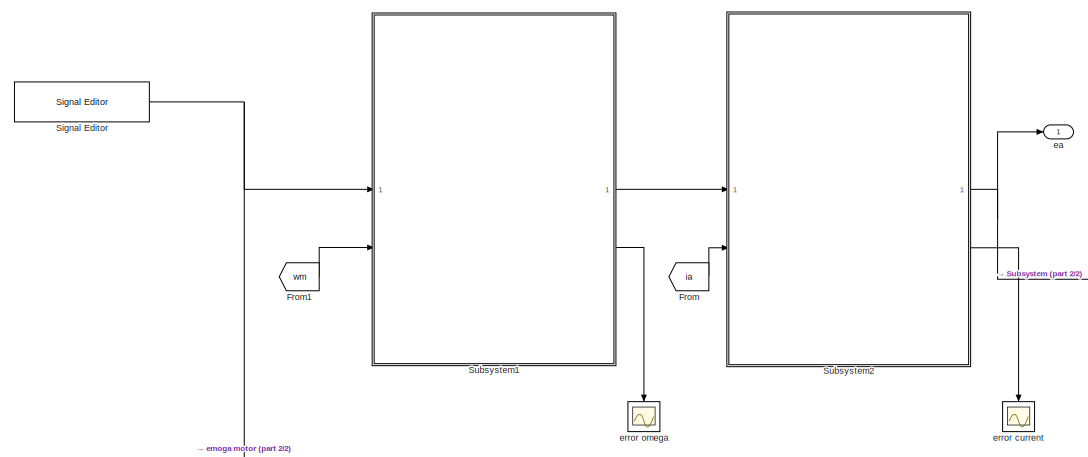
[diagram: root canvas - part 1/2, left side, full height]
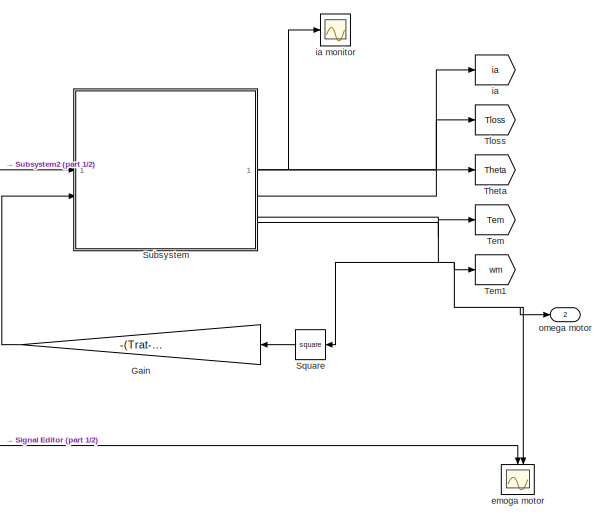
[diagram: root canvas - part 2/2, right side, full height]
MODEL slx_5d32dbe2fcf1
KIND model
CONFIG AbsTol = auto
CONFIG EnableMultiTasking = off
CONFIG FixedStep = auto
CONFIG MaxStep = auto
CONFIG MinStep = auto
CONFIG RelTol = 1e-3
CONFIG SampleTimeConstraint = Unconstrained
CONFIG SolverName = VariableStepAuto
CONFIG StartTime = 0.0
CONFIG StopTime = 100
BLOCK [From] From
  GotoTag = ia
BLOCK [From] From1
  GotoTag = wm
BLOCK [Gain] Gain
  Gain = -(Trat-CM*wm)/(wm^2)
  NameLocation = top
BLOCK [Reference] Signal Editor  REF=SignalEditorBlockLib/Signal Editor
  LibrarySourceBlock = simulink/Sources/Signal Editor
  SourceBlock = SignalEditorBlockLib/Signal Editor
  SourceType = SignalEditor
  UserDataPersistent = on
BLOCK [Math] Square
  NameLocation = top
  Operator = square
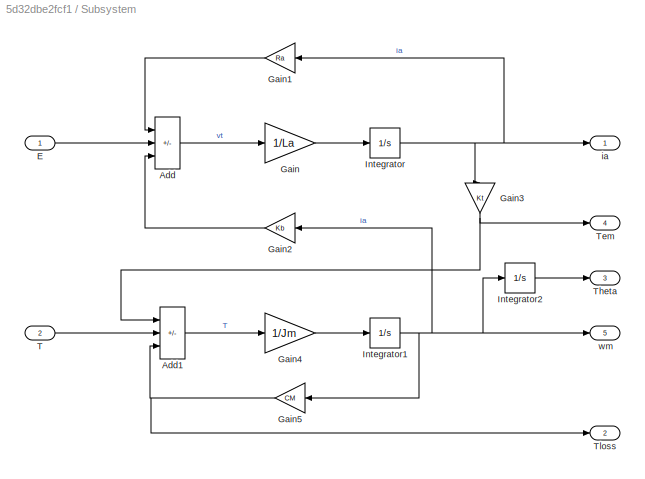
BLOCK [SubSystem] Subsystem
BLOCK [Sum] Subsystem/Add
  IconShape = rectangular
  Inputs = -+-
BLOCK [Sum] Subsystem/Add1
  IconShape = rectangular
  Inputs = ++-
BLOCK [Inport] Subsystem/E
BLOCK [Gain] Subsystem/Gain
  Gain = 1/La
BLOCK [Gain] Subsystem/Gain1
  Gain = Ra
  NameLocation = top
BLOCK [Gain] Subsystem/Gain2
  Gain = Kb
  NameLocation = top
BLOCK [Gain] Subsystem/Gain3
  Gain = Kt
  NameLocation = left
BLOCK [Gain] Subsystem/Gain4
  Gain = 1/Jm
BLOCK [Gain] Subsystem/Gain5
  Gain = CM
  NameLocation = top
BLOCK [Integrator] Subsystem/Integrator
BLOCK [Integrator] Subsystem/Integrator1
BLOCK [Integrator] Subsystem/Integrator2
BLOCK [Inport] Subsystem/T
  Port = 2
BLOCK [Outport] Subsystem/Tem
  Port = 4
BLOCK [Outport] Subsystem/Theta
  Port = 3
BLOCK [Outport] Subsystem/Tloss
  Port = 2
BLOCK [Outport] Subsystem/ia
BLOCK [Outport] Subsystem/wm
  Port = 5
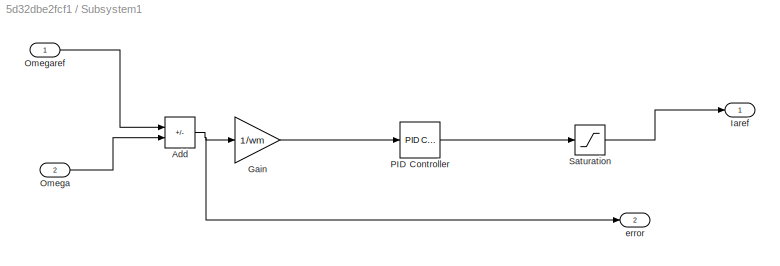
BLOCK [SubSystem] Subsystem1
BLOCK [Sum] Subsystem1/Add
  IconShape = rectangular
  Inputs = +-
BLOCK [Gain] Subsystem1/Gain
  Gain = 1/wm
BLOCK [Outport] Subsystem1/Iaref
BLOCK [Inport] Subsystem1/Omega
  Port = 2
BLOCK [Inport] Subsystem1/Omegaref
BLOCK [Reference] Subsystem1/PID Controller  REF=slpidlib/PID Controller
  LibrarySourceBlock = simulink/Continuous/PID Controller
  SourceBlock = slpidlib/PID Controller
  SourceType = PID 1dof
BLOCK [Saturate] Subsystem1/Saturation
  LowerLimit = -9
  UpperLimit = 9
BLOCK [Outport] Subsystem1/error
  Port = 2
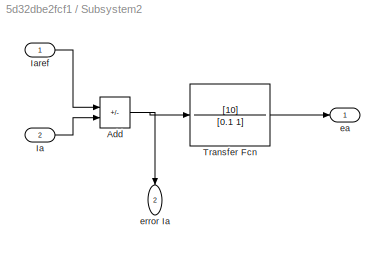
BLOCK [SubSystem] Subsystem2
BLOCK [Sum] Subsystem2/Add
  IconShape = rectangular
  Inputs = +-
BLOCK [Inport] Subsystem2/Ia
  Port = 2
BLOCK [Inport] Subsystem2/Iaref
BLOCK [TransferFcn] Subsystem2/Transfer Fcn
  Denominator = [0.1 1]
  Numerator = [10]
BLOCK [Outport] Subsystem2/ea
BLOCK [Outport] Subsystem2/error Ia
  NameLocation = left
  Port = 2
BLOCK [Goto] Tem
  GotoTag = Tem
BLOCK [Goto] Tem1
  GotoTag = wm
BLOCK [Goto] Theta
  GotoTag = Theta
BLOCK [Goto] Tloss
  GotoTag = Tloss
BLOCK [Outport] ea
BLOCK [Scope] emoga motor
  Floating = off
  NameLocation = left
  NumInputPorts = 2
  ScopeSpecificationString = Simulink.scopes.TimeScopeBlockCfg('CurrentConfiguration', extmgr.ConfigurationSet(extmgr.Configuration('Core','General UI',true),extmgr.Configuration('Core','Source UI',true),extmgr.Configuration('Sources','WiredSimulink',true),extmgr.Configuration('Visuals','Time Domain',true,'SerializedDisplays',{struct('MinYLimReal','-431.18594','MaxYLimReal','633.49302','YLabelReal','','MinYLimMag',' 0.00000',...<+1495ch>
BLOCK [Scope] error current
  Floating = off
  NameLocation = left
  NumInputPorts = 1
  ScopeSpecificationString = Simulink.scopes.TimeScopeBlockCfg('CurrentConfiguration', extmgr.ConfigurationSet(extmgr.Configuration('Core','General UI',true),extmgr.Configuration('Core','Source UI',true),extmgr.Configuration('Sources','WiredSimulink',true,'DataLoggingVariableName','ScopeData2'),extmgr.Configuration('Visuals','Time Domain',true,'SerializedDisplays',{struct('MinYLimReal','-165.95569','MaxYLimReal','618.43952','...<+1460ch>
BLOCK [Scope] error omega
  Floating = off
  NameLocation = left
  NumInputPorts = 1
  ScopeSpecificationString = Simulink.scopes.TimeScopeBlockCfg('CurrentConfiguration', extmgr.ConfigurationSet(extmgr.Configuration('Core','General UI',true),extmgr.Configuration('Core','Source UI',true),extmgr.Configuration('Sources','WiredSimulink',true,'DataLoggingVariableName','ScopeData3'),extmgr.Configuration('Visuals','Time Domain',true,'SerializedDisplays',{struct('MinYLimReal','-672.99807','MaxYLimReal','786.65841','...<+1462ch>
BLOCK [Goto] ia
  GotoTag = ia
BLOCK [Scope] ia monitor
  Floating = off
  NumInputPorts = 1
  ScopeSpecificationString = Simulink.scopes.TimeScopeBlockCfg('CurrentConfiguration', extmgr.ConfigurationSet(extmgr.Configuration('Core','General UI',true),extmgr.Configuration('Core','Source UI',true),extmgr.Configuration('Sources','WiredSimulink',true,'DataLoggingVariableName','ScopeData1'),extmgr.Configuration('Visuals','Time Domain',true,'SerializedDisplays',{struct('MinYLimReal','-16.81509','MaxYLimReal','18.44744','YL...<+1452ch>
BLOCK [Outport] omega motor
  Port = 2
LINE From1:1 -> Subsystem1:2
LINE From:1 -> Subsystem2:2
LINE Gain:1 -> Subsystem:2
NET Signal Editor:1 -> Subsystem1:1, emoga motor:1
LINE Square:1 -> Gain:1
LINE Subsystem/Add1:1 -> Subsystem/Gain4:1
LINE Subsystem/Add:1 -> Subsystem/Gain:1
LINE Subsystem/E:1 -> Subsystem/Add:2
LINE Subsystem/Gain1:1 -> Subsystem/Add:1
LINE Subsystem/Gain2:1 -> Subsystem/Add:3
NET Subsystem/Gain3:1 -> Subsystem/Add1:1, Subsystem/Tem:1
LINE Subsystem/Gain4:1 -> Subsystem/Integrator1:1
NET Subsystem/Gain5:1 -> Subsystem/Add1:3, Subsystem/Tloss:1
LINE Subsystem/Gain:1 -> Subsystem/Integrator:1
NET Subsystem/Integrator1:1 -> Subsystem/Gain2:1, Subsystem/Gain5:1, Subsystem/Integrator2:1, Subsystem/wm:1
LINE Subsystem/Integrator2:1 -> Subsystem/Theta:1
NET Subsystem/Integrator:1 -> Subsystem/Gain1:1, Subsystem/Gain3:1, Subsystem/ia:1
LINE Subsystem/T:1 -> Subsystem/Add1:2
NET Subsystem1/Add:1 -> Subsystem1/Gain:1, Subsystem1/error:1
LINE Subsystem1/Gain:1 -> Subsystem1/PID Controller:1
LINE Subsystem1/Omega:1 -> Subsystem1/Add:2
LINE Subsystem1/Omegaref:1 -> Subsystem1/Add:1
LINE Subsystem1/PID Controller:1 -> Subsystem1/Saturation:1
LINE Subsystem1/Saturation:1 -> Subsystem1/Iaref:1
LINE Subsystem1:1 -> Subsystem2:1
LINE Subsystem1:2 -> error omega:1
NET Subsystem2/Add:1 -> Subsystem2/Transfer Fcn:1, Subsystem2/error Ia:1
LINE Subsystem2/Ia:1 -> Subsystem2/Add:2
LINE Subsystem2/Iaref:1 -> Subsystem2/Add:1
LINE Subsystem2/Transfer Fcn:1 -> Subsystem2/ea:1
NET Subsystem2:1 -> Subsystem:1, ea:1
LINE Subsystem2:2 -> error current:1
NET Subsystem:1 -> ia monitor:1, ia:1
LINE Subsystem:2 -> Tloss:1
LINE Subsystem:3 -> Theta:1
LINE Subsystem:4 -> Tem:1
NET Subsystem:5 -> Square:1, Tem1:1, emoga motor:2, omega motor:1
note: NET lines group one-source signal fan-out (src -> all destinations, sorted); 1:1 wires keep LINE
